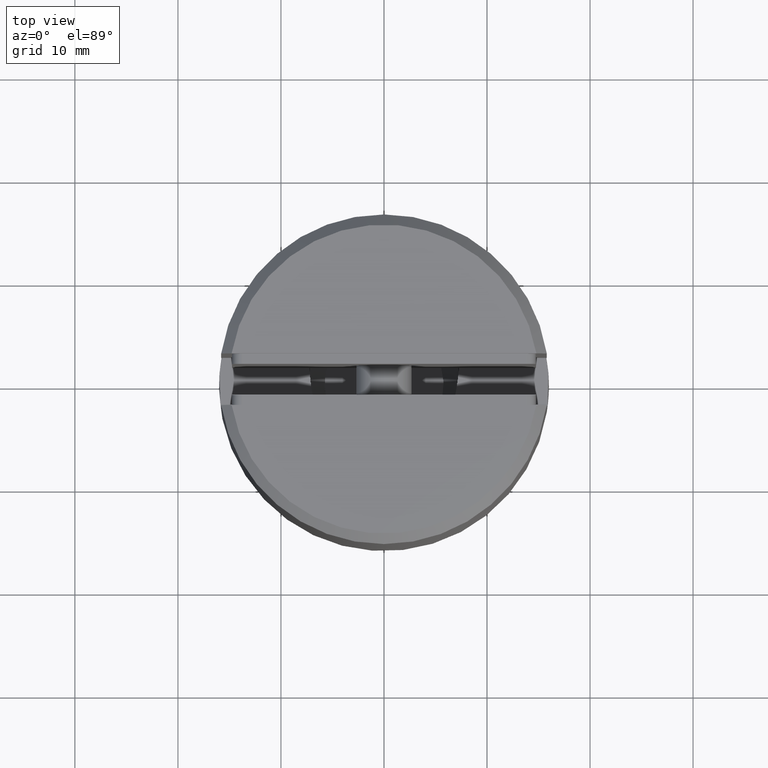
[diagram: clean part render]
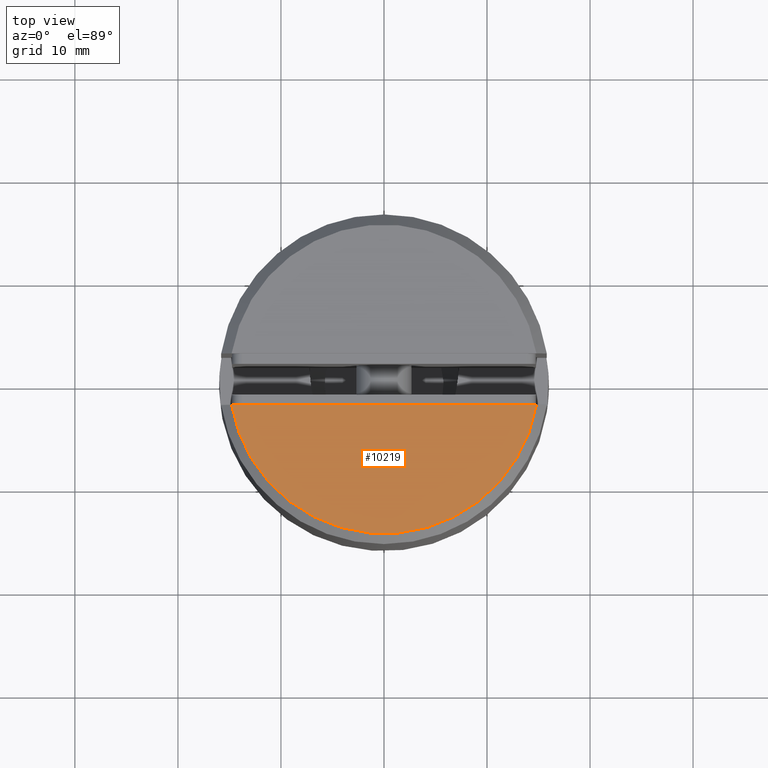
[diagram: same view with one face highlighted and labeled with its STEP entity id]
A machine part, top view. The second image highlights one B-rep face of the part: STEP entity #10219.
In plain terms, the highlighted planar face has unit normal (0, 0, -1).
Its self-contained STEP definition (entity closure, byte-faithful):
#368 = EDGE_CURVE ( 'NONE', #18204, #3751, #15869, .T. ) ;
#520 = CARTESIAN_POINT ( 'NONE',  ( 0.000000000000000000, 2.967978926597961474E-16, 40.00000000000000000 ) ) ;
#1840 = DIRECTION ( 'NONE',  ( 0.000000000000000000, 0.000000000000000000, 1.000000000000000000 ) ) ;
#2568 = LINE ( 'NONE', #13082, #7814 ) ;
#3322 = CARTESIAN_POINT ( 'NONE',  ( 0.000000000000000000, 4.946631544329935625E-16, 40.00000000000000000 ) ) ;
#3751 = VERTEX_POINT ( 'NONE', #7379 ) ;
#4444 = AXIS2_PLACEMENT_3D ( 'NONE', #520, #5094, #17303 ) ;
#4849 = EDGE_CURVE ( 'NONE', #3751, #18204, #2568, .T. ) ;
#5094 = DIRECTION ( 'NONE',  ( -0.000000000000000000, 0.000000000000000000, -1.000000000000000000 ) ) ;
#5155 = PLANE ( 'NONE',  #4444 ) ;
#5201 = DIRECTION ( 'NONE',  ( -1.000000000000000000, 0.000000000000000000, 0.000000000000000000 ) ) ;
#7028 = DIRECTION ( 'NONE',  ( -1.000000000000000000, 0.000000000000000000, 0.000000000000000000 ) ) ;
#7379 = CARTESIAN_POINT ( 'NONE',  ( 14.79019945774903810, -2.500000000000001332, 40.00000000000000000 ) ) ;
#7814 = VECTOR ( 'NONE', #7028, 1000.000000000000000 ) ;
#9603 = FACE_OUTER_BOUND ( 'NONE', #13678, .T. ) ;
#10219 = ADVANCED_FACE ( 'NONE', ( #9603 ), #5155, .F. ) ;
#13082 = CARTESIAN_POINT ( 'NONE',  ( 15.80348062927910568, -2.500000000000001332, 40.00000000000000000 ) ) ;
#13526 = CARTESIAN_POINT ( 'NONE',  ( -14.79019945774903988, -2.500000000000001332, 40.00000000000000000 ) ) ;
#13678 = EDGE_LOOP ( 'NONE', ( #15896, #18303 ) ) ;
#14140 = AXIS2_PLACEMENT_3D ( 'NONE', #3322, #1840, #5201 ) ;
#15869 = CIRCLE ( 'NONE', #14140, 15.00000000000000000 ) ;
#15896 = ORIENTED_EDGE ( 'NONE', *, *, #4849, .T. ) ;
#17303 = DIRECTION ( 'NONE',  ( -1.000000000000000000, 0.000000000000000000, 0.000000000000000000 ) ) ;
#18204 = VERTEX_POINT ( 'NONE', #13526 ) ;
#18303 = ORIENTED_EDGE ( 'NONE', *, *, #368, .T. ) ;